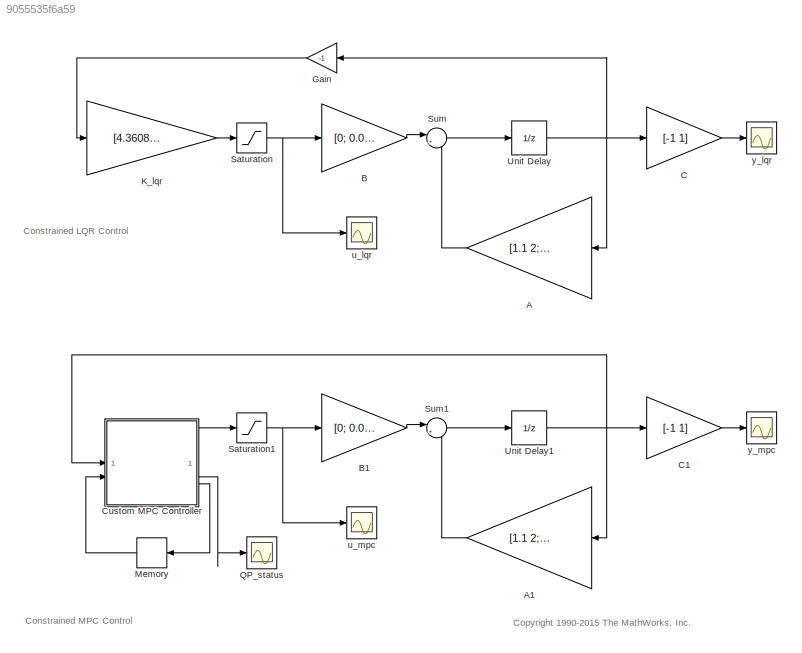
MODEL slx_9055535f6a59
KIND model
CONFIG AbsTol = auto
CONFIG EnableMultiTasking = on
CONFIG FixedStep = auto
CONFIG MaxStep = auto
CONFIG MinStep = auto
CONFIG RelTol = 1e-3
CONFIG SampleTimeConstraint = Unconstrained
CONFIG SolverName = ode45
CONFIG StartTime = 0.0
CONFIG StopTime = 40
BLOCK [Gain] A
  Gain = [1.1 2; 0 0.95]
  Multiplication = Matrix(K*u)
BLOCK [Gain] A1
  Gain = [1.1 2; 0 0.95]
  Multiplication = Matrix(K*u)
BLOCK [Gain] B
  Gain = [0; 0.0787]
  Multiplication = Matrix(K*u)
BLOCK [Gain] B1
  Gain = [0; 0.0787]
  Multiplication = Matrix(K*u)
BLOCK [Gain] C
  Gain = [-1 1]
  Multiplication = Matrix(K*u)
BLOCK [Gain] C1
  Gain = [-1 1]
  Multiplication = Matrix(K*u)
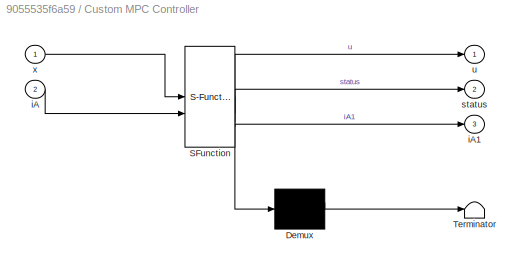
BLOCK [SubSystem] Custom MPC Controller
  ErrorFcn = Stateflow.Translate.translate
  PermitHierarchicalResolution = ExplicitOnly
  SFBlockType = MATLAB Function
  TreatAsAtomicUnit = on
BLOCK [Demux] Custom MPC Controller/ Demux 
  Outputs = 1
BLOCK [S-Function] Custom MPC Controller/ SFunction 
  EnableBusSupport = off
  FunctionName = sf_sfun
  Parameters = Ac,F,Linv,b0,opt
  PortCounts = [2 4]
  SFcnIsStateOwnerBlock = off
  SFunctionDeploymentMode = off
  Tag = Stateflow S-Function 2
BLOCK [Terminator] Custom MPC Controller/ Terminator 
BLOCK [Inport] Custom MPC Controller/iA
  Port = 2
BLOCK [Outport] Custom MPC Controller/iA1
  Port = 3
BLOCK [Outport] Custom MPC Controller/status
  Port = 2
BLOCK [Outport] Custom MPC Controller/u
BLOCK [Inport] Custom MPC Controller/x
BLOCK [Gain] Gain
  Gain = -1
BLOCK [Gain] K_lqr
  Gain = [4.3608 18.7401]
  Multiplication = Matrix(K*u)
BLOCK [Memory] Memory
  InitialCondition = false(8,1)
BLOCK [Scope] QP_status
  Floating = off
  NumInputPorts = 1
  ScopeSpecificationString = Simulink.scopes.TimeScopeBlockCfg('CurrentConfiguration', extmgr.ConfigurationSet(extmgr.Configuration('Core','General UI',true),extmgr.Configuration('Core','Source UI',true),extmgr.Configuration('Sources','WiredSimulink',true,'DataLoggingVariableName','ScopeData4'),extmgr.Configuration('Visuals','Time Domain',true,'SerializedDisplays',{struct('MinYLimReal','0.5','MaxYLimReal','5.5','YLabelReal','...<+1408ch>
BLOCK [Saturate] Saturation
  LowerLimit = -1
  UpperLimit = 1
BLOCK [Saturate] Saturation1
  LowerLimit = -1
  UpperLimit = 1
BLOCK [Sum] Sum
  Inputs = |++
BLOCK [Sum] Sum1
  Inputs = |++
BLOCK [UnitDelay] Unit Delay
  HasFrameUpgradeWarning = on
  InitialCondition = [0.5;-0.5]
BLOCK [UnitDelay] Unit Delay1
  HasFrameUpgradeWarning = on
  InitialCondition = [0.5;-0.5]
BLOCK [Scope] u_lqr
  Floating = off
  NumInputPorts = 1
  ScopeSpecificationString = Simulink.scopes.TimeScopeBlockCfg('CurrentConfiguration', extmgr.ConfigurationSet(extmgr.Configuration('Core','General UI',true),extmgr.Configuration('Core','Source UI',true),extmgr.Configuration('Sources','WiredSimulink',true,'DataLoggingVariableName','ScopeData1'),extmgr.Configuration('Visuals','Time Domain',true,'SerializedDisplays',{struct('MinYLimReal','0.9','MaxYLimReal','1.1','YLabelReal','...<+1389ch>
BLOCK [Scope] u_mpc
  Floating = off
  NumInputPorts = 1
  ScopeSpecificationString = Simulink.scopes.TimeScopeBlockCfg('CurrentConfiguration', extmgr.ConfigurationSet(extmgr.Configuration('Core','General UI',true),extmgr.Configuration('Core','Source UI',true),extmgr.Configuration('Sources','WiredSimulink',true,'DataLoggingVariableName','ScopeData2'),extmgr.Configuration('Visuals','Time Domain',true,'SerializedDisplays',{struct('MinYLimReal','-1.25','MaxYLimReal','1.25','YLabelReal...<+1406ch>
BLOCK [Scope] y_lqr
  Floating = off
  NumInputPorts = 1
  ScopeSpecificationString = Simulink.scopes.TimeScopeBlockCfg('CurrentConfiguration', extmgr.ConfigurationSet(extmgr.Configuration('Core','General UI',true),extmgr.Configuration('Core','Source UI',true),extmgr.Configuration('Sources','WiredSimulink',true),extmgr.Configuration('Visuals','Time Domain',true,'SerializedDisplays',{struct('MinYLimReal','-1.1','MaxYLimReal','-0.9','YLabelReal','','MinYLimMag','0.00000','MaxYLimMag'...<+1354ch>
BLOCK [Scope] y_mpc
  Floating = off
  NumInputPorts = 1
  ScopeSpecificationString = Simulink.scopes.TimeScopeBlockCfg('CurrentConfiguration', extmgr.ConfigurationSet(extmgr.Configuration('Core','General UI',true),extmgr.Configuration('Core','Source UI',true),extmgr.Configuration('Sources','WiredSimulink',true,'DataLoggingVariableName','ScopeData3'),extmgr.Configuration('Visuals','Time Domain',true,'SerializedDisplays',{struct('MinYLimReal','-1.63954','MaxYLimReal','4.75585','YLab...<+1416ch>
ANNOTATION (root): Constrained LQR Control
ANNOTATION (root): Constrained MPC Control
ANNOTATION (root): <copyright redacted>
LINE A1:1 -> Sum1:2
LINE A:1 -> Sum:2
LINE B1:1 -> Sum1:1
LINE B:1 -> Sum:1
LINE C1:1 -> y_mpc:1
LINE C:1 -> y_lqr:1
LINE Custom MPC Controller:1 -> Saturation1:1
LINE Custom MPC Controller:2 -> QP_status:1
LINE Custom MPC Controller:3 -> Memory:1
LINE Gain:1 -> K_lqr:1
LINE K_lqr:1 -> Saturation:1
LINE Memory:1 -> Custom MPC Controller:2
NET Saturation1:1 -> B1:1, u_mpc:1
NET Saturation:1 -> B:1, u_lqr:1
LINE Sum1:1 -> Unit Delay1:1
LINE Sum:1 -> Unit Delay:1
NET Unit Delay1:1 -> A1:1, C1:1, Custom MPC Controller:1
NET Unit Delay:1 -> A:1, C:1, Gain:1
note: NET lines group one-source signal fan-out (src -> all destinations, sorted); 1:1 wires keep LINE
CHART Custom MPC Controller states=1 transitions=1
  STATE_LABEL 'eML_blk_kernel()'
  STATE_LABEL 'SCRIPT:\nfunction [u,status,iA1] = MPC(x,iA,Linv,F,Ac,b0,opt)\n%#codegen\n[uMPC,status,iA1] = mpcActiveSetSolver(Linv,F*x,Ac,b0,[],zeros(0,1),iA,opt);\nu = uMPC(1);\n\n'
CHART  states=0 transitions=0
